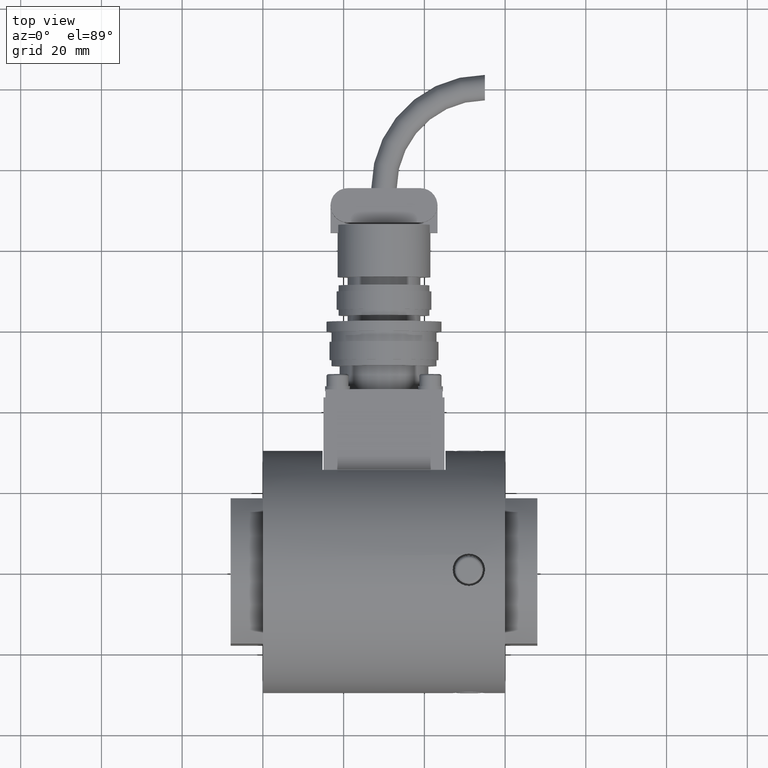
[diagram: clean part render]
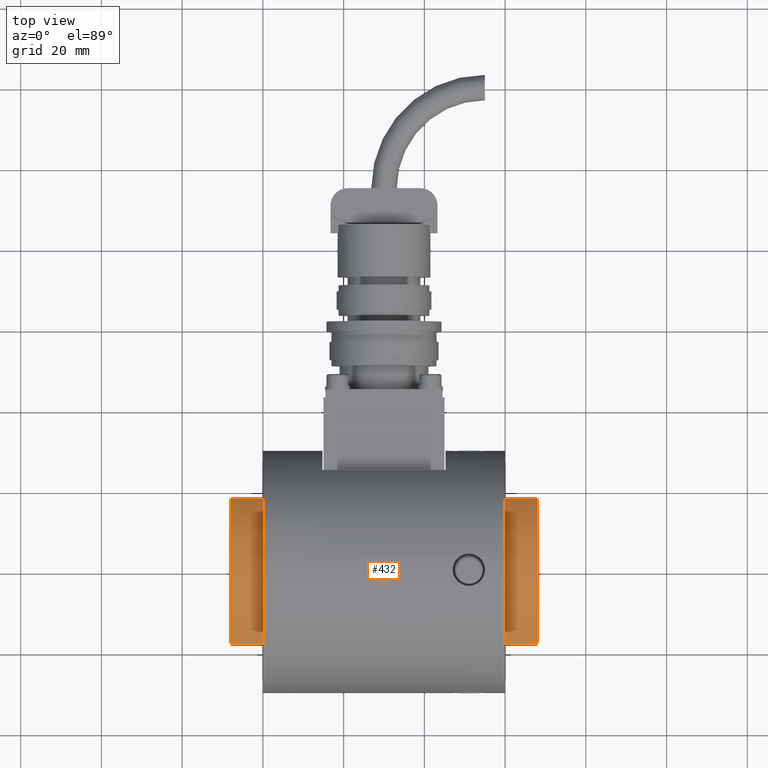
[diagram: same view with one face highlighted and labeled with its STEP entity id]
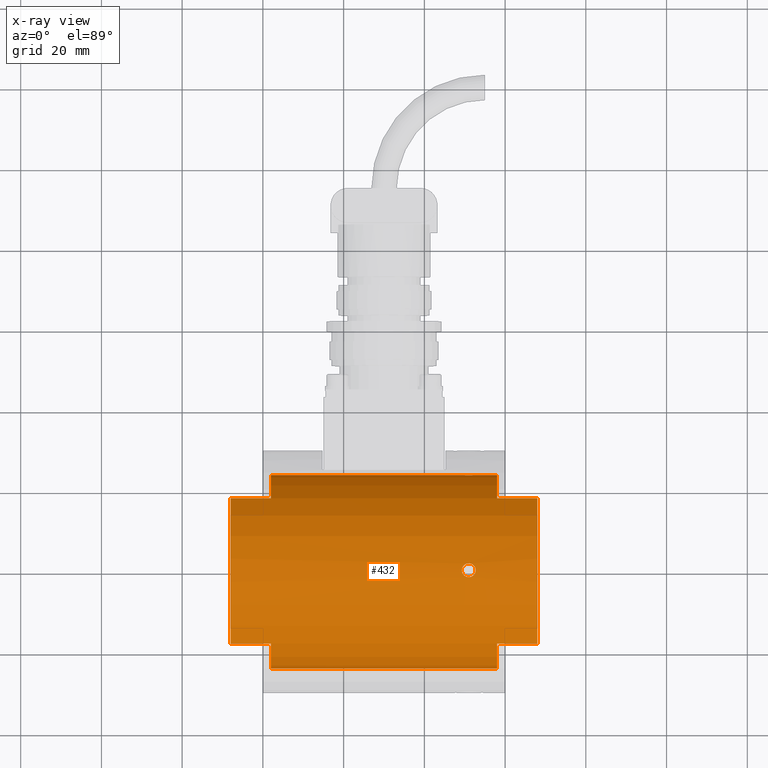
[diagram: x-ray of the same camera — body ghosted, the highlighted face saturated]
A machine part, top view. The second image highlights one B-rep face of the part: STEP entity #432.
The next image is the same camera in x-ray: the body ghosted, the highlighted face saturated — about 0% of this face is hidden behind the body in this view.
In plain terms, the highlighted cylindrical surface (partial cylindrical patch) has radius 24 mm, axis along (1, 0, -0).
Its self-contained STEP definition (entity closure, byte-faithful):
#147=CARTESIAN_POINT('',(3.999999999999957,-2.842171E-014,0.0));
#148=DIRECTION('',(1.0,0.0,0.0));
#149=DIRECTION('',(0.0,1.0,0.0));
#150=AXIS2_PLACEMENT_3D('',#147,#148,#149);
#151=CYLINDRICAL_SURFACE('',#150,24.0);
#152=CARTESIAN_POINT('',(31.999999999999968,23.999999999999972,0.0));
#153=VERTEX_POINT('',#152);
#154=CARTESIAN_POINT('',(26.710999999999942,23.999999999999925,-5.151435E-014));
#155=VERTEX_POINT('',#154);
#156=CARTESIAN_POINT('',(31.999999999999968,23.999999999999972,0.0));
#157=DIRECTION('',(-1.0,0.0,0.0));
#158=VECTOR('',#157,5.289000000000026);
#159=LINE('',#156,#158);
#160=EDGE_CURVE('',#153,#155,#159,.T.);
#161=ORIENTED_EDGE('',*,*,#160,.F.);
#162=CARTESIAN_POINT('',(31.999999999999972,18.0,-15.874507866387511));
#163=VERTEX_POINT('',#162);
#164=CARTESIAN_POINT('',(31.999999999999972,-2.842171E-014,0.0));
#165=DIRECTION('',(-1.0,0.0,0.0));
#166=DIRECTION('',(0.0,1.0,0.0));
#167=AXIS2_PLACEMENT_3D('',#164,#165,#166);
#168=CIRCLE('',#167,24.0);
#169=EDGE_CURVE('',#153,#163,#168,.T.);
#170=ORIENTED_EDGE('',*,*,#169,.T.);
#171=CARTESIAN_POINT('',(41.999999999999972,18.0,-15.874507866387511));
#172=VERTEX_POINT('',#171);
#173=CARTESIAN_POINT('',(31.999999999999972,18.0,-15.874507866387511));
#174=DIRECTION('',(1.0,0.0,0.0));
#175=VECTOR('',#174,10.0);
#176=LINE('',#173,#175);
#177=EDGE_CURVE('',#163,#172,#176,.T.);
#178=ORIENTED_EDGE('',*,*,#177,.T.);
#179=CARTESIAN_POINT('',(41.999999999999943,-17.999999999999972,-15.874507866387608));
#180=VERTEX_POINT('',#179);
#181=CARTESIAN_POINT('',(41.999999999999943,-2.842171E-014,0.0));
#182=DIRECTION('',(1.0,0.0,0.0));
#183=DIRECTION('',(0.0,1.0,0.0));
#184=AXIS2_PLACEMENT_3D('',#181,#182,#183);
#185=CIRCLE('',#184,24.0);
#186=EDGE_CURVE('',#180,#172,#185,.T.);
#187=ORIENTED_EDGE('',*,*,#186,.F.);
#188=CARTESIAN_POINT('',(31.999999999999972,-18.0,-15.874507866387576));
#189=VERTEX_POINT('',#188);
#190=CARTESIAN_POINT('',(41.999999999999943,-17.999999999999972,-15.874507866387608));
#191=DIRECTION('',(-1.0,0.0,0.0));
#192=VECTOR('',#191,9.999999999999972);
#193=LINE('',#190,#192);
#194=EDGE_CURVE('',#180,#189,#193,.T.);
#195=ORIENTED_EDGE('',*,*,#194,.T.);
#196=CARTESIAN_POINT('',(31.999999999999975,-24.000000000000028,-2.939055E-015));
#197=VERTEX_POINT('',#196);
#198=CARTESIAN_POINT('',(31.999999999999972,-2.842171E-014,0.0));
#199=DIRECTION('',(-1.0,0.0,0.0));
#200=DIRECTION('',(0.0,1.0,0.0));
#201=AXIS2_PLACEMENT_3D('',#198,#199,#200);
#202=CIRCLE('',#201,24.0);
#203=EDGE_CURVE('',#189,#197,#202,.T.);
#204=ORIENTED_EDGE('',*,*,#203,.T.);
#205=CARTESIAN_POINT('',(26.710999999999942,-23.999999999999982,5.151435E-014));
#206=VERTEX_POINT('',#205);
#207=CARTESIAN_POINT('',(31.999999999999975,-24.000000000000028,-2.939055E-015));
#208=DIRECTION('',(-1.0,0.0,0.0));
#209=VECTOR('',#208,5.289000000000034);
#210=LINE('',#207,#209);
#211=EDGE_CURVE('',#197,#206,#210,.T.);
#212=ORIENTED_EDGE('',*,*,#211,.T.);
#213=CARTESIAN_POINT('',(23.288999999999945,-23.999999999999982,5.151435E-014));
#214=VERTEX_POINT('',#213);
#215=CARTESIAN_POINT('',(26.710999999999942,-23.999999999999982,5.151435E-014));
#216=CARTESIAN_POINT('',(26.710999999999942,-23.999999999999982,-0.107457552573854));
#217=CARTESIAN_POINT('',(26.700713794499652,-23.999259147180958,-0.218573954456354));
#218=CARTESIAN_POINT('',(26.657396654252832,-23.996228367647213,-0.439588801994097));
#219=CARTESIAN_POINT('',(26.624375109376523,-23.993940394390037,-0.549489114668507));
#220=CARTESIAN_POINT('',(26.537056834207625,-23.988187194264476,-0.760255923911429));
#221=CARTESIAN_POINT('',(26.482690585219579,-23.984722610025003,-0.861290967050297));
#222=CARTESIAN_POINT('',(26.357063785346135,-23.977284446447861,-1.048127560892670));
#223=CARTESIAN_POINT('',(26.285795316347240,-23.973318440901053,-1.133924088873017));
#224=CARTESIAN_POINT('',(26.133924022413627,-23.965652737863103,-1.285795382806630));
#225=CARTESIAN_POINT('',(26.048127463785068,-23.961684770945769,-1.357063858963492));
#226=CARTESIAN_POINT('',(25.861290890160575,-23.954239455248501,-1.482690628596039));
#227=CARTESIAN_POINT('',(25.760255898634195,-23.950769730328069,-1.537056844693236));
#228=CARTESIAN_POINT('',(25.549489186352307,-23.945006160533673,-1.624375079665207));
#229=CARTESIAN_POINT('',(25.439588919719746,-23.942713042513564,-1.657396622744364));
#230=CARTESIAN_POINT('',(25.218574083696922,-23.939675103224030,-1.700713777604724));
#231=CARTESIAN_POINT('',(25.107457646621455,-23.938932286131759,-1.710999999999949));
#232=CARTESIAN_POINT('',(24.892542353378431,-23.938932286131759,-1.710999999999949));
#233=CARTESIAN_POINT('',(24.781425916302968,-23.939675103224030,-1.700713777604724));
#234=CARTESIAN_POINT('',(24.560411080280144,-23.942713042513564,-1.657396622744364));
#235=CARTESIAN_POINT('',(24.450510813647583,-23.945006160533673,-1.624375079665207));
#236=CARTESIAN_POINT('',(24.239744101365691,-23.950769730328069,-1.537056844693237));
#237=CARTESIAN_POINT('',(24.138709109839311,-23.954239455248501,-1.482690628596039));
#238=CARTESIAN_POINT('',(23.951872536214818,-23.961684770945769,-1.357063858963492));
#239=CARTESIAN_POINT('',(23.866075977586259,-23.965652737863103,-1.285795382806629));
#240=CARTESIAN_POINT('',(23.714204683652646,-23.973318440901053,-1.133924088873017));
#241=CARTESIAN_POINT('',(23.642936214653751,-23.977284446447861,-1.048127560892669));
#242=CARTESIAN_POINT('',(23.517309414780307,-23.984722610025003,-0.861290967050298));
#243=CARTESIAN_POINT('',(23.462943165792261,-23.988187194264476,-0.760255923911430));
#244=CARTESIAN_POINT('',(23.375624890623364,-23.993940394390037,-0.549489114668508));
#245=CARTESIAN_POINT('',(23.342603345747055,-23.996228367647213,-0.439588801994098));
#246=CARTESIAN_POINT('',(23.299286205500234,-23.999259147180958,-0.218573954456354));
#247=CARTESIAN_POINT('',(23.288999999999945,-23.999999999999982,-0.107457552573854));
#248=CARTESIAN_POINT('',(23.288999999999945,-23.999999999999982,5.151435E-014));
#249=B_SPLINE_CURVE_WITH_KNOTS('',3,(#215,#216,#217,#218,#219,#220,#221,#222,#223,#224,#225,#226,#227,#228,#229,#230,#231,#232,#233,#234,#235,#236,#237,#238,#239,#240,#241,#242,#243,#244,#245,#246,#247,#248),.UNSPECIFIED.,.F.,.U.,(4,2,2,2,2,2,2,2,2,2,2,2,2,2,2,2,4),(2.578982390344999,2.901355048066716,3.223727705788432,3.546100363510149,3.868473021231865,4.190845961096398,4.513218900960932,4.835591840825465,5.157964780689998,5.480337720554531,5.802710660419065,6.125083600283597,6.447456540148131,6.769829197869846,7.092201855591563,7.414574513313280,7.736947171034997),.UNSPECIFIED.);
#250=EDGE_CURVE('',#206,#214,#249,.T.);
#251=ORIENTED_EDGE('',*,*,#250,.T.);
#252=CARTESIAN_POINT('',(-24.000000000000014,-24.000000000000028,-2.939055E-015));
#253=VERTEX_POINT('',#252);
#254=CARTESIAN_POINT('',(23.288999999999945,-23.999999999999982,5.151435E-014));
#255=DIRECTION('',(-1.0,0.0,0.0));
#256=VECTOR('',#255,47.288999999999959);
#257=LINE('',#254,#256);
#258=EDGE_CURVE('',#214,#253,#257,.T.);
#259=ORIENTED_EDGE('',*,*,#258,.T.);
#260=CARTESIAN_POINT('',(-24.000000000000014,-18.0,-15.874507866387576));
#261=VERTEX_POINT('',#260);
#262=CARTESIAN_POINT('',(-24.000000000000014,-2.842171E-014,0.0));
#263=DIRECTION('',(1.0,0.0,0.0));
#264=DIRECTION('',(0.0,1.0,0.0));
#265=AXIS2_PLACEMENT_3D('',#262,#263,#264);
#266=CIRCLE('',#265,24.0);
#267=EDGE_CURVE('',#253,#261,#266,.T.);
#268=ORIENTED_EDGE('',*,*,#267,.T.);
#269=CARTESIAN_POINT('',(-34.000000000000028,-18.0,-15.874507866387576));
#270=VERTEX_POINT('',#269);
#271=CARTESIAN_POINT('',(-24.000000000000014,-18.0,-15.874507866387576));
#272=DIRECTION('',(-1.0,0.0,0.0));
#273=VECTOR('',#272,10.000000000000014);
#274=LINE('',#271,#273);
#275=EDGE_CURVE('',#261,#270,#274,.T.);
#276=ORIENTED_EDGE('',*,*,#275,.T.);
#277=CARTESIAN_POINT('',(-34.000000000000028,18.0,-15.874507866387511));
#278=VERTEX_POINT('',#277);
#279=CARTESIAN_POINT('',(-34.000000000000028,-2.842171E-014,0.0));
#280=DIRECTION('',(1.0,0.0,0.0));
#281=DIRECTION('',(0.0,1.0,0.0));
#282=AXIS2_PLACEMENT_3D('',#279,#280,#281);
#283=CIRCLE('',#282,24.0);
#284=EDGE_CURVE('',#270,#278,#283,.T.);
#285=ORIENTED_EDGE('',*,*,#284,.T.);
#286=CARTESIAN_POINT('',(-24.000000000000014,18.0,-15.874507866387511));
#287=VERTEX_POINT('',#286);
#288=CARTESIAN_POINT('',(-34.000000000000028,18.0,-15.874507866387511));
#289=DIRECTION('',(1.0,0.0,0.0));
#290=VECTOR('',#289,10.000000000000014);
#291=LINE('',#288,#290);
#292=EDGE_CURVE('',#278,#287,#291,.T.);
#293=ORIENTED_EDGE('',*,*,#292,.T.);
#294=CARTESIAN_POINT('',(-24.000000000000014,23.999999999999972,0.0));
#295=VERTEX_POINT('',#294);
#296=CARTESIAN_POINT('',(-24.000000000000014,-2.842171E-014,0.0));
#297=DIRECTION('',(1.0,0.0,0.0));
#298=DIRECTION('',(0.0,1.0,0.0));
#299=AXIS2_PLACEMENT_3D('',#296,#297,#298);
#300=CIRCLE('',#299,24.0);
#301=EDGE_CURVE('',#287,#295,#300,.T.);
#302=ORIENTED_EDGE('',*,*,#301,.T.);
#303=CARTESIAN_POINT('',(23.288999999999945,23.999999999999925,-5.151435E-014));
#304=VERTEX_POINT('',#303);
#305=CARTESIAN_POINT('',(23.288999999999945,23.999999999999925,-5.151435E-014));
#306=DIRECTION('',(-1.0,0.0,0.0));
#307=VECTOR('',#306,47.288999999999959);
#308=LINE('',#305,#307);
#309=EDGE_CURVE('',#304,#295,#308,.T.);
#310=ORIENTED_EDGE('',*,*,#309,.F.);
#311=CARTESIAN_POINT('',(23.288999999999945,23.999999999999925,-5.151435E-014));
#312=CARTESIAN_POINT('',(23.288999999999945,23.999999999999925,-0.107457552573957));
#313=CARTESIAN_POINT('',(23.299286205500231,23.999259147180901,-0.218573954456455));
#314=CARTESIAN_POINT('',(23.342603345747051,23.996228367647156,-0.439588801994199));
#315=CARTESIAN_POINT('',(23.375624890623364,23.993940394389977,-0.549489114668610));
#316=CARTESIAN_POINT('',(23.462943165792261,23.988187194264416,-0.760255923911532));
#317=CARTESIAN_POINT('',(23.517309414780307,23.984722610024946,-0.861290967050400));
#318=CARTESIAN_POINT('',(23.642936214653751,23.977284446447804,-1.048127560892773));
#319=CARTESIAN_POINT('',(23.714204683652646,23.973318440900989,-1.133924088873119));
#320=CARTESIAN_POINT('',(23.866075977586256,23.965652737863035,-1.285795382806731));
#321=CARTESIAN_POINT('',(23.951872536214815,23.961684770945709,-1.357063858963590));
#322=CARTESIAN_POINT('',(24.138709109839308,23.954239455248441,-1.482690628596139));
#323=CARTESIAN_POINT('',(24.239744101365687,23.950769730328005,-1.537056844693340));
#324=CARTESIAN_POINT('',(24.450510813647579,23.945006160533609,-1.624375079665310));
#325=CARTESIAN_POINT('',(24.560411080280133,23.942713042513500,-1.657396622744465));
#326=CARTESIAN_POINT('',(24.781425916302958,23.939675103223966,-1.700713777604826));
#327=CARTESIAN_POINT('',(24.892542353378431,23.938932286131696,-1.711000000000052));
#328=CARTESIAN_POINT('',(24.999999999999943,23.938932286131696,-1.711000000000052));
#329=CARTESIAN_POINT('',(25.107457646621455,23.938932286131696,-1.711000000000052));
#330=CARTESIAN_POINT('',(25.218574083696922,23.939675103223966,-1.700713777604828));
#331=CARTESIAN_POINT('',(25.439588919719750,23.942713042513500,-1.657396622744465));
#332=CARTESIAN_POINT('',(25.549489186352307,23.945006160533609,-1.624375079665309));
#333=CARTESIAN_POINT('',(25.760255898634195,23.950769730328005,-1.537056844693340));
#334=CARTESIAN_POINT('',(25.861290890160575,23.954239455248437,-1.482690628596142));
#335=CARTESIAN_POINT('',(26.048127463785068,23.961684770945705,-1.357063858963595));
#336=CARTESIAN_POINT('',(26.133924022413627,23.965652737863039,-1.285795382806732));
#337=CARTESIAN_POINT('',(26.285795316347240,23.973318440900989,-1.133924088873120));
#338=CARTESIAN_POINT('',(26.357063785346135,23.977284446447804,-1.048127560892771));
#339=CARTESIAN_POINT('',(26.482690585219579,23.984722610024946,-0.861290967050399));
#340=CARTESIAN_POINT('',(26.537056834207625,23.988187194264420,-0.760255923911533));
#341=CARTESIAN_POINT('',(26.624375109376523,23.993940394389977,-0.549489114668611));
#342=CARTESIAN_POINT('',(26.657396654252832,23.996228367647156,-0.439588801994200));
#343=CARTESIAN_POINT('',(26.700713794499652,23.999259147180901,-0.218573954456457));
#344=CARTESIAN_POINT('',(26.710999999999942,23.999999999999925,-0.107457552573957));
#345=CARTESIAN_POINT('',(26.710999999999942,23.999999999999925,-5.151435E-014));
#346=B_SPLINE_CURVE_WITH_KNOTS('',3,(#311,#312,#313,#314,#315,#316,#317,#318,#319,#320,#321,#322,#323,#324,#325,#326,#327,#328,#329,#330,#331,#332,#333,#334,#335,#336,#337,#338,#339,#340,#341,#342,#343,#344,#345),.UNSPECIFIED.,.F.,.U.,(4,2,2,2,2,2,2,2,3,2,2,2,2,2,2,2,4),(7.736947171034997,8.059319828756713,8.381692486478428,8.704065144200145,9.026437801921862,9.348810741786394,9.671183681650929,9.993556621515463,10.315929561379996,10.638302501244528,10.960675441109062,11.283048380973595,11.605421320838127,11.927793978559844,12.250166636281561,12.572539294003278,12.894911951724994),.UNSPECIFIED.);
#347=EDGE_CURVE('',#304,#155,#346,.T.);
#348=ORIENTED_EDGE('',*,*,#347,.T.);
#349=EDGE_LOOP('',(#161,#170,#178,#187,#195,#204,#212,#251,#259,#268,#276,#285,#293,#302,#310,#348));
#350=FACE_OUTER_BOUND('',#349,.T.);
#351=CARTESIAN_POINT('',(26.710999999999942,-8.232598E-014,-23.999999999999954));
#352=VERTEX_POINT('',#351);
#353=CARTESIAN_POINT('',(23.288999999999945,-8.237855E-014,-23.999999999999954));
#354=VERTEX_POINT('',#353);
#355=CARTESIAN_POINT('',(26.710999999999942,-8.232598E-014,-23.999999999999954));
#356=CARTESIAN_POINT('',(26.710999999999942,0.107457552573823,-23.999999999999954));
#357=CARTESIAN_POINT('',(26.700713794499652,0.218573954456323,-23.999259147180929));
#358=CARTESIAN_POINT('',(26.657396654252832,0.439588801994066,-23.996228367647184));
#359=CARTESIAN_POINT('',(26.624375109376523,0.549489114668477,-23.993940394390009));
#360=CARTESIAN_POINT('',(26.537056834207625,0.760255923911399,-23.988187194264448));
#361=CARTESIAN_POINT('',(26.482690585219579,0.861290967050267,-23.984722610024974));
#362=CARTESIAN_POINT('',(26.357063785346135,1.048127560892639,-23.977284446447833));
#363=CARTESIAN_POINT('',(26.285795316347240,1.133924088872986,-23.973318440901025));
#364=CARTESIAN_POINT('',(26.133924022413627,1.285795382806599,-23.965652737863074));
#365=CARTESIAN_POINT('',(26.048127463785068,1.357063858963461,-23.961684770945741));
#366=CARTESIAN_POINT('',(25.861290890160575,1.482690628596008,-23.954239455248473));
#367=CARTESIAN_POINT('',(25.760255898634195,1.537056844693206,-23.950769730328041));
#368=CARTESIAN_POINT('',(25.549489186352307,1.624375079665176,-23.945006160533644));
#369=CARTESIAN_POINT('',(25.439588919719750,1.657396622744332,-23.942713042513535));
#370=CARTESIAN_POINT('',(25.218574083696922,1.700713777604694,-23.939675103224001));
#371=CARTESIAN_POINT('',(25.107457646621455,1.710999999999918,-23.938932286131731));
#372=CARTESIAN_POINT('',(24.892542353378431,1.710999999999918,-23.938932286131731));
#373=CARTESIAN_POINT('',(24.781425916302968,1.700713777604693,-23.939675103224001));
#374=CARTESIAN_POINT('',(24.560411080280144,1.657396622744333,-23.942713042513535));
#375=CARTESIAN_POINT('',(24.450510813647583,1.624375079665176,-23.945006160533644));
#376=CARTESIAN_POINT('',(24.239744101365691,1.537056844693206,-23.950769730328041));
#377=CARTESIAN_POINT('',(24.138709109839311,1.482690628596008,-23.954239455248473));
#378=CARTESIAN_POINT('',(23.951872536214818,1.357063858963461,-23.961684770945741));
#379=CARTESIAN_POINT('',(23.866075977586259,1.285795382806598,-23.965652737863074));
#380=CARTESIAN_POINT('',(23.714204683652646,1.133924088872986,-23.973318440901025));
#381=CARTESIAN_POINT('',(23.642936214653751,1.048127560892638,-23.977284446447833));
#382=CARTESIAN_POINT('',(23.517309414780307,0.861290967050267,-23.984722610024974));
#383=CARTESIAN_POINT('',(23.462943165792261,0.760255923911399,-23.988187194264448));
#384=CARTESIAN_POINT('',(23.375624890623364,0.549489114668477,-23.993940394390009));
#385=CARTESIAN_POINT('',(23.342603345747055,0.439588801994067,-23.996228367647184));
#386=CARTESIAN_POINT('',(23.299286205500234,0.218573954456323,-23.999259147180929));
#387=CARTESIAN_POINT('',(23.288999999999945,0.107457552573823,-23.999999999999954));
#388=CARTESIAN_POINT('',(23.288999999999945,-8.237855E-014,-23.999999999999954));
#389=B_SPLINE_CURVE_WITH_KNOTS('',3,(#355,#356,#357,#358,#359,#360,#361,#362,#363,#364,#365,#366,#367,#368,#369,#370,#371,#372,#373,#374,#375,#376,#377,#378,#379,#380,#381,#382,#383,#384,#385,#386,#387,#388),.UNSPECIFIED.,.F.,.U.,(4,2,2,2,2,2,2,2,2,2,2,2,2,2,2,2,4),(2.578982390344999,2.901355048066716,3.223727705788432,3.546100363510148,3.868473021231865,4.190845961096398,4.513218900960931,4.835591840825464,5.157964780689998,5.480337720554531,5.802710660419065,6.125083600283597,6.447456540148131,6.769829197869846,7.092201855591563,7.414574513313280,7.736947171034997),.UNSPECIFIED.);
#390=EDGE_CURVE('',#352,#354,#389,.T.);
#391=ORIENTED_EDGE('',*,*,#390,.T.);
#392=CARTESIAN_POINT('',(23.288999999999945,-8.237855E-014,-23.999999999999954));
#393=CARTESIAN_POINT('',(23.288999999999945,-0.107457552573988,-23.999999999999954));
#394=CARTESIAN_POINT('',(23.299286205500231,-0.218573954456486,-23.999259147180929));
#395=CARTESIAN_POINT('',(23.342603345747051,-0.439588801994230,-23.996228367647184));
#396=CARTESIAN_POINT('',(23.375624890623364,-0.549489114668641,-23.993940394390005));
#397=CARTESIAN_POINT('',(23.462943165792261,-0.760255923911563,-23.988187194264444));
#398=CARTESIAN_POINT('',(23.517309414780307,-0.861290967050432,-23.984722610024974));
#399=CARTESIAN_POINT('',(23.642936214653751,-1.048127560892804,-23.977284446447833));
#400=CARTESIAN_POINT('',(23.714204683652646,-1.133924088873150,-23.973318440901018));
#401=CARTESIAN_POINT('',(23.866075977586259,-1.285795382806763,-23.965652737863067));
#402=CARTESIAN_POINT('',(23.951872536214818,-1.357063858963626,-23.961684770945734));
#403=CARTESIAN_POINT('',(24.138709109839311,-1.482690628596173,-23.954239455248466));
#404=CARTESIAN_POINT('',(24.239744101365691,-1.537056844693371,-23.950769730328034));
#405=CARTESIAN_POINT('',(24.450510813647576,-1.624375079665340,-23.945006160533637));
#406=CARTESIAN_POINT('',(24.560411080280137,-1.657396622744496,-23.942713042513528));
#407=CARTESIAN_POINT('',(24.781425916302965,-1.700713777604858,-23.939675103223994));
#408=CARTESIAN_POINT('',(24.892542353378431,-1.711000000000083,-23.938932286131724));
#409=CARTESIAN_POINT('',(24.999999999999943,-1.711000000000083,-23.938932286131724));
#410=CARTESIAN_POINT('',(25.107457646621455,-1.711000000000083,-23.938932286131724));
#411=CARTESIAN_POINT('',(25.218574083696922,-1.700713777604858,-23.939675103223994));
#412=CARTESIAN_POINT('',(25.439588919719750,-1.657396622744496,-23.942713042513528));
#413=CARTESIAN_POINT('',(25.549489186352307,-1.624375079665340,-23.945006160533637));
#414=CARTESIAN_POINT('',(25.760255898634195,-1.537056844693371,-23.950769730328034));
#415=CARTESIAN_POINT('',(25.861290890160575,-1.482690628596173,-23.954239455248466));
#416=CARTESIAN_POINT('',(26.048127463785068,-1.357063858963626,-23.961684770945734));
#417=CARTESIAN_POINT('',(26.133924022413627,-1.285795382806763,-23.965652737863067));
#418=CARTESIAN_POINT('',(26.285795316347240,-1.133924088873151,-23.973318440901018));
#419=CARTESIAN_POINT('',(26.357063785346135,-1.048127560892802,-23.977284446447833));
#420=CARTESIAN_POINT('',(26.482690585219579,-0.861290967050430,-23.984722610024974));
#421=CARTESIAN_POINT('',(26.537056834207625,-0.760255923911564,-23.988187194264448));
#422=CARTESIAN_POINT('',(26.624375109376523,-0.549489114668642,-23.993940394390005));
#423=CARTESIAN_POINT('',(26.657396654252832,-0.439588801994231,-23.996228367647184));
#424=CARTESIAN_POINT('',(26.700713794499652,-0.218573954456488,-23.999259147180929));
#425=CARTESIAN_POINT('',(26.710999999999942,-0.107457552573988,-23.999999999999954));
#426=CARTESIAN_POINT('',(26.710999999999942,-8.232598E-014,-23.999999999999954));
#427=B_SPLINE_CURVE_WITH_KNOTS('',3,(#392,#393,#394,#395,#396,#397,#398,#399,#400,#401,#402,#403,#404,#405,#406,#407,#408,#409,#410,#411,#412,#413,#414,#415,#416,#417,#418,#419,#420,#421,#422,#423,#424,#425,#426),.UNSPECIFIED.,.F.,.U.,(4,2,2,2,2,2,2,2,3,2,2,2,2,2,2,2,4),(7.736947171034997,8.059319828756713,8.381692486478428,8.704065144200145,9.026437801921862,9.348810741786394,9.671183681650927,9.993556621515459,10.315929561379994,10.638302501244526,10.960675441109061,11.283048380973593,11.605421320838126,11.927793978559842,12.250166636281559,12.572539294003276,12.894911951724993),.UNSPECIFIED.);
#428=EDGE_CURVE('',#354,#352,#427,.T.);
#429=ORIENTED_EDGE('',*,*,#428,.T.);
#430=EDGE_LOOP('',(#391,#429));
#431=FACE_BOUND('',#430,.T.);
#432=ADVANCED_FACE('',(#350,#431),#151,.T.);